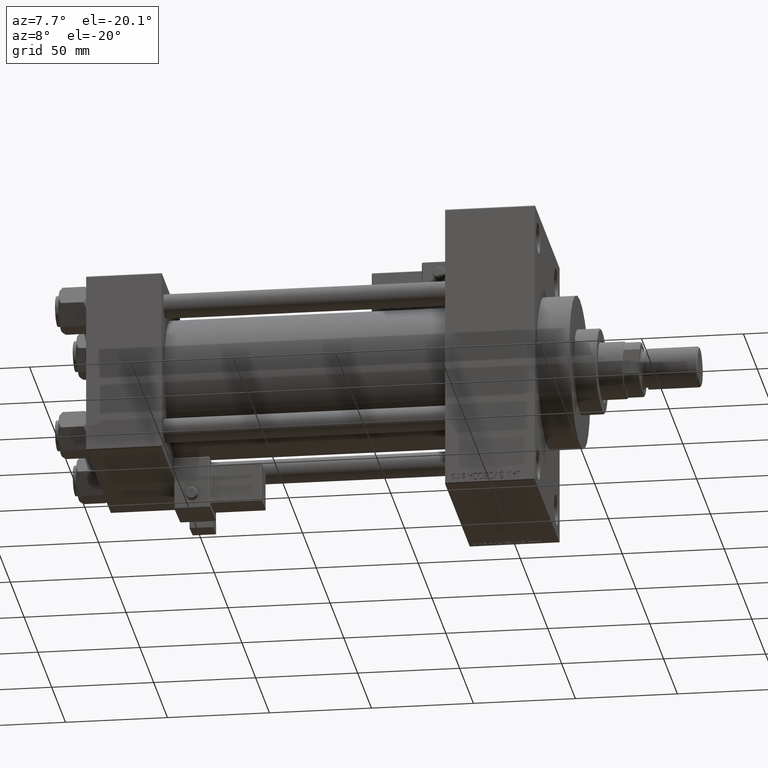
[diagram: clean part render]
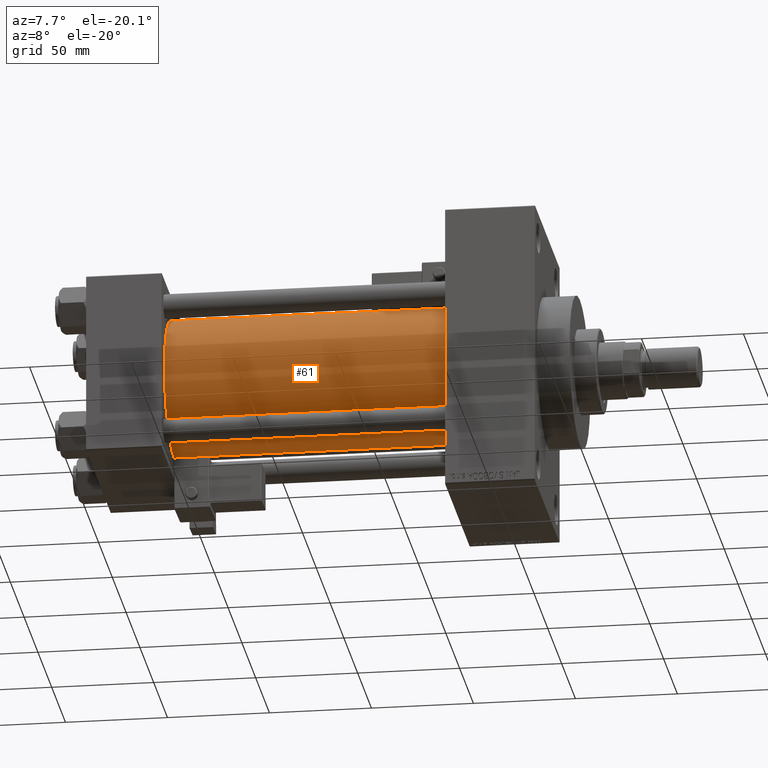
[diagram: same view with one face highlighted and labeled with its STEP entity id]
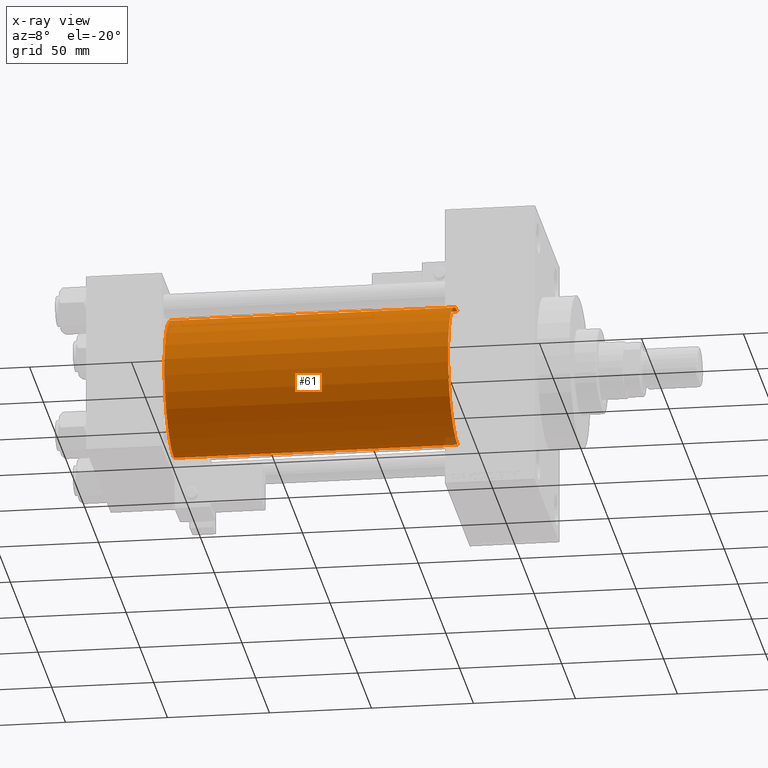
[diagram: x-ray of the same camera — body ghosted, the highlighted face saturated]
A machine part, auxiliary view. The second image highlights one B-rep face of the part: STEP entity #61.
The next image is the same camera in x-ray: the body ghosted, the highlighted face saturated — about 0% of this face is hidden behind the body in this view.
In plain terms, the highlighted cylindrical surface (partial cylindrical patch) has radius 34.5 mm, axis along (-1, -0, -0).
Its self-contained STEP definition (entity closure, byte-faithful):
#61 = ADVANCED_FACE ( 'NONE', ( #28201 ), #28463, .T. ) ;
#545 = DIRECTION ( 'NONE',  ( -1.000000000000000000, -0.000000000000000000, -0.000000000000000000 ) ) ;
#654 = CARTESIAN_POINT ( 'NONE',  ( 176.0000000000000284, 1.622946243093158675E-15, -34.50000000000000000 ) ) ;
#3150 = AXIS2_PLACEMENT_3D ( 'NONE', #22223, #34720, #26641 ) ;
#4185 = EDGE_CURVE ( 'NONE', #16682, #40112, #11407, .T. ) ;
#4471 = LINE ( 'NONE', #44887, #28453 ) ;
#6655 = EDGE_CURVE ( 'NONE', #12961, #48060, #48994, .T. ) ;
#10566 = CARTESIAN_POINT ( 'NONE',  ( 176.0000000000000284, -2.602085213965210642E-15, 0.000000000000000000 ) ) ;
#11407 = CIRCLE ( 'NONE', #17255, 34.50000000000000000 ) ;
#11446 = ORIENTED_EDGE ( 'NONE', *, *, #6655, .T. ) ;
#11889 = EDGE_CURVE ( 'NONE', #16682, #12961, #4471, .T. ) ;
#12832 = DIRECTION ( 'NONE',  ( -1.000000000000000000, -0.000000000000000000, -0.000000000000000000 ) ) ;
#12961 = VERTEX_POINT ( 'NONE', #39637 ) ;
#16682 = VERTEX_POINT ( 'NONE', #26448 ) ;
#17255 = AXIS2_PLACEMENT_3D ( 'NONE', #10566, #39488, #46803 ) ;
#17561 = CARTESIAN_POINT ( 'NONE',  ( 37.00000000000000711, 1.622946243093158675E-15, -34.50000000000000000 ) ) ;
#18346 = CARTESIAN_POINT ( 'NONE',  ( 176.0000000000000284, 1.622946243093158675E-15, -34.50000000000000000 ) ) ;
#22223 = CARTESIAN_POINT ( 'NONE',  ( 37.00000000000000711, -2.602085213965210642E-15, 0.000000000000000000 ) ) ;
#24556 = DIRECTION ( 'NONE',  ( 0.000000000000000000, 0.000000000000000000, 1.000000000000000000 ) ) ;
#26448 = CARTESIAN_POINT ( 'NONE',  ( 176.0000000000000284, -2.602085213965210642E-15, 34.50000000000000000 ) ) ;
#26641 = DIRECTION ( 'NONE',  ( 0.000000000000000000, 0.000000000000000000, 1.000000000000000000 ) ) ;
#27384 = ORIENTED_EDGE ( 'NONE', *, *, #44133, .F. ) ;
#27884 = AXIS2_PLACEMENT_3D ( 'NONE', #36541, #545, #24556 ) ;
#28201 = FACE_OUTER_BOUND ( 'NONE', #38857, .T. ) ;
#28453 = VECTOR ( 'NONE', #12832, 1000.000000000000000 ) ;
#28463 = CYLINDRICAL_SURFACE ( 'NONE', #27884, 34.50000000000000000 ) ;
#31743 = VECTOR ( 'NONE', #36910, 1000.000000000000000 ) ;
#34720 = DIRECTION ( 'NONE',  ( 1.000000000000000000, -0.000000000000000000, 0.000000000000000000 ) ) ;
#35171 = ORIENTED_EDGE ( 'NONE', *, *, #4185, .F. ) ;
#36541 = CARTESIAN_POINT ( 'NONE',  ( 176.0000000000000284, -2.602085213965210642E-15, 0.000000000000000000 ) ) ;
#36910 = DIRECTION ( 'NONE',  ( -1.000000000000000000, -0.000000000000000000, -0.000000000000000000 ) ) ;
#38857 = EDGE_LOOP ( 'NONE', ( #27384, #35171, #40874, #11446 ) ) ;
#39488 = DIRECTION ( 'NONE',  ( 1.000000000000000000, 0.000000000000000000, 0.000000000000000000 ) ) ;
#39637 = CARTESIAN_POINT ( 'NONE',  ( 37.00000000000000711, -2.602085213965210642E-15, 34.50000000000000000 ) ) ;
#40112 = VERTEX_POINT ( 'NONE', #18346 ) ;
#40557 = LINE ( 'NONE', #654, #31743 ) ;
#40874 = ORIENTED_EDGE ( 'NONE', *, *, #11889, .T. ) ;
#44133 = EDGE_CURVE ( 'NONE', #40112, #48060, #40557, .T. ) ;
#44887 = CARTESIAN_POINT ( 'NONE',  ( 176.0000000000000284, -2.602085213965210642E-15, 34.50000000000000000 ) ) ;
#46803 = DIRECTION ( 'NONE',  ( 0.000000000000000000, 0.000000000000000000, -1.000000000000000000 ) ) ;
#48060 = VERTEX_POINT ( 'NONE', #17561 ) ;
#48994 = CIRCLE ( 'NONE', #3150, 34.50000000000000000 ) ;